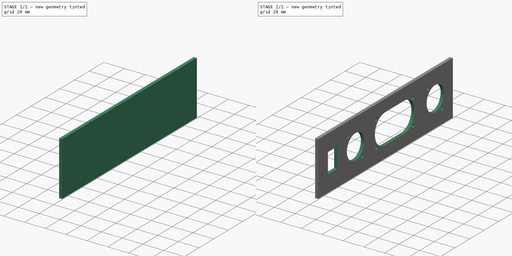
[diagram: build sequence overview — one tinted view per stage of 2, left to right]
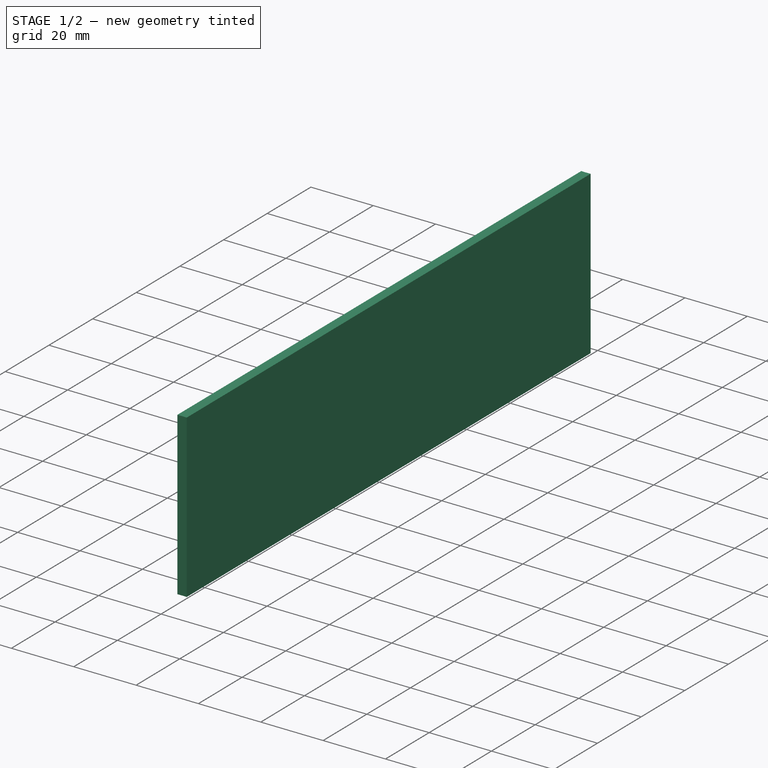
[diagram: stage 1 of 2 — iso view after this stage's code; geometry added in this stage tinted green]
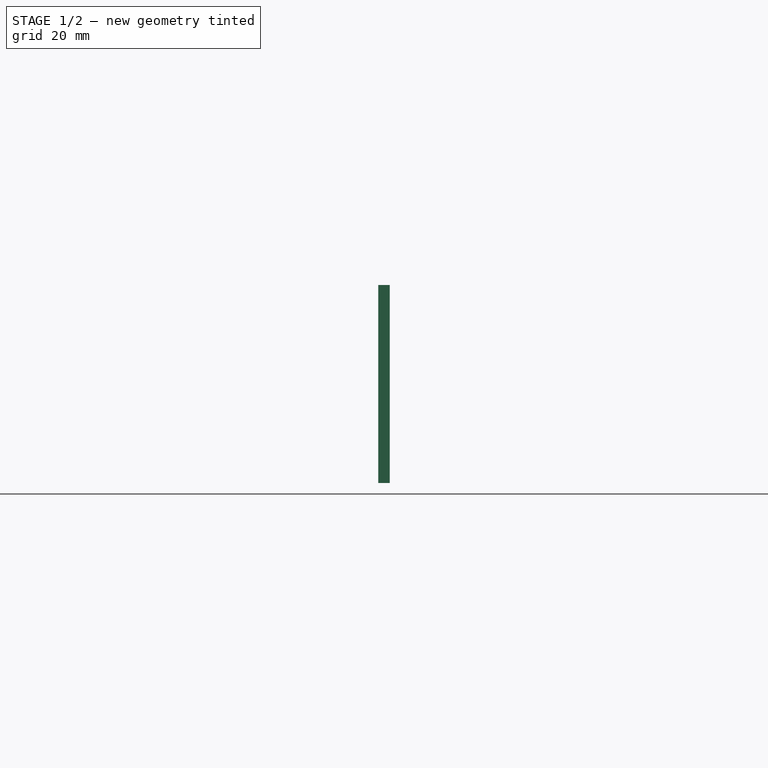
[diagram: stage 1 of 2 — front view after this stage's code; geometry added in this stage tinted green]
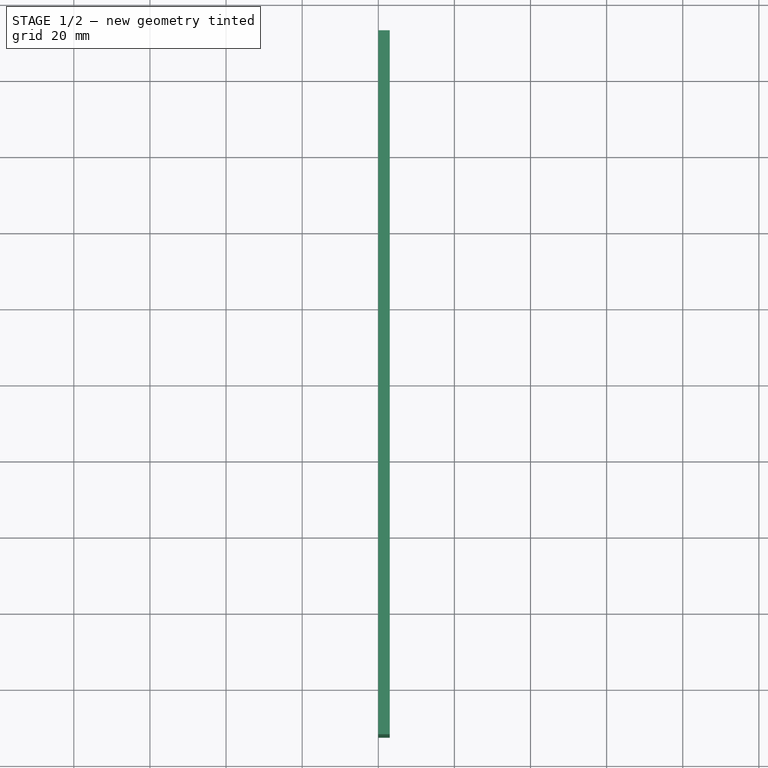
[diagram: stage 1 of 2 — top view after this stage's code; geometry added in this stage tinted green]
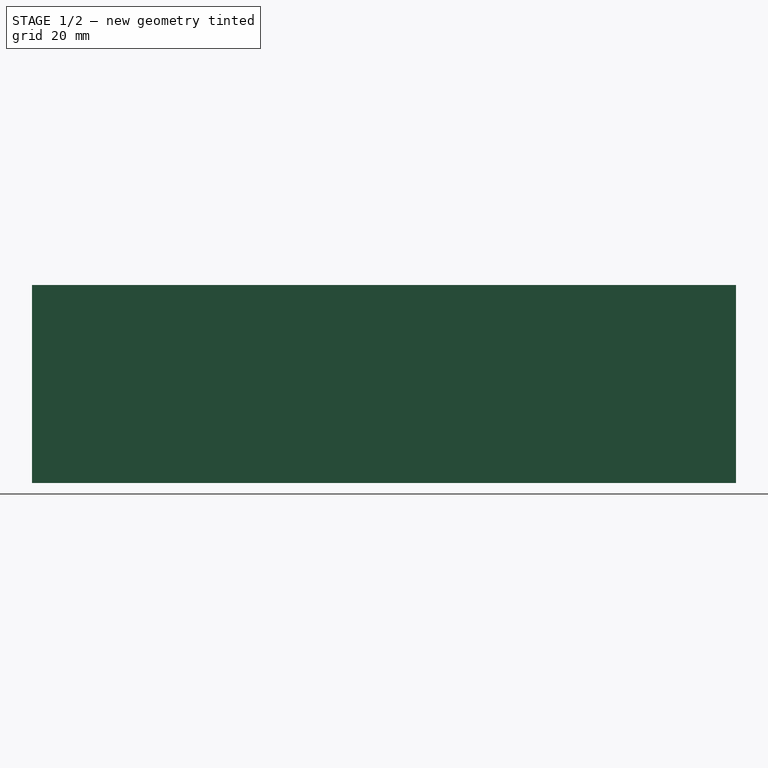
[diagram: stage 1 of 2 — right view after this stage's code; geometry added in this stage tinted green]
FCSTD DOCUMENT  (FreeCAD 0.20R29410 (Git))
Label: case-front-panel
License: All rights reserved
LicenseURL: http://en.wikipedia.org/wiki/All_rights_reserved
objects: Sketcher::SketchObject×2, PartDesign::Pad×1, PartDesign::ShapeBinder×1, PartDesign::Pocket×1, PartDesign::Body×1
note: 8 computed .brp shape members not serialized (recipe doc carries the construction recipe); baked Part::Feature solids carry a one-line shape summary decoded from their .brp

FEATURE [Sketcher::SketchObject] Sketch001  label="skHoles"
  FullyConstrained = false
  MapMode = 5
  Placement = pos=(0,0,0) rot=(0.57735,0.57735,0.57735;2.0944rad)
  Support = -> [YZ_Plane]
  sketch-geometry (20):
    g0: Circle CenterX=68.2497 CenterY=23 CenterZ=0 NormalX=0 NormalY=0 NormalZ=1 AngleXU=0 Radius=11.8
    g1: Circle CenterX=58.7497 CenterY=35 CenterZ=0 NormalX=0 NormalY=0 NormalZ=1 AngleXU=0 Radius=1.55
    g2: Circle CenterX=77.7497 CenterY=11 CenterZ=0 NormalX=0 NormalY=0 NormalZ=1 AngleXU=0 Radius=1.55
    g3: ArcOfCircle CenterX=25.3964 CenterY=23 CenterZ=0 NormalX=0 NormalY=0 NormalZ=1 AngleXU=0 Radius=14.35 StartAngle=4.71239 EndAngle=7.85398
    g4: ArcOfCircle CenterX=-0.303581 CenterY=23 CenterZ=0 NormalX=0 NormalY=0 NormalZ=1 AngleXU=0 Radius=14.35 StartAngle=1.5708 EndAngle=4.71239
    g5: Circle CenterX=-41.3752 CenterY=23 CenterZ=0 NormalX=0 NormalY=0 NormalZ=1 AngleXU=0 Radius=11.8
    g6: Circle CenterX=-31.8752 CenterY=11 CenterZ=0 NormalX=0 NormalY=0 NormalZ=1 AngleXU=0 Radius=1.55
    g7: Circle CenterX=-50.8752 CenterY=35 CenterZ=0 NormalX=0 NormalY=0 NormalZ=1 AngleXU=0 Radius=1.55
    g8: LineSegment StartX=-79.2293 StartY=32.7 StartZ=0 EndX=-66.3293 EndY=32.7 EndZ=0
    g9: LineSegment StartX=-66.3293 StartY=32.7 StartZ=0 EndX=-66.3293 EndY=13.3 EndZ=0
    g10: LineSegment StartX=-66.3293 StartY=13.3 StartZ=0 EndX=-79.2293 EndY=13.3 EndZ=0
    g11: LineSegment StartX=-79.2293 StartY=13.3 StartZ=0 EndX=-79.2293 EndY=32.7 EndZ=0
    g12: LineSegment StartX=-0.303581 StartY=37.35 StartZ=0 EndX=25.3964 EndY=37.35 EndZ=0
    g13: LineSegment StartX=-0.303581 StartY=8.65 StartZ=0 EndX=25.3964 EndY=8.65 EndZ=0
    g14: LineSegment StartX=92.5 StartY=23 StartZ=0 EndX=-92.5 EndY=23 EndZ=0
    g15: Circle CenterX=-12.4536 CenterY=35.2 CenterZ=0 NormalX=0 NormalY=0 NormalZ=1 AngleXU=0 Radius=1.6
    g16: Circle CenterX=-12.4536 CenterY=10.8 CenterZ=0 NormalX=0 NormalY=0 NormalZ=1 AngleXU=0 Radius=1.6
    g17: Circle CenterX=37.5464 CenterY=10.8 CenterZ=0 NormalX=0 NormalY=0 NormalZ=1 AngleXU=0 Radius=1.6
    g18: Circle CenterX=37.5464 CenterY=35.2 CenterZ=0 NormalX=0 NormalY=0 NormalZ=1 AngleXU=0 Radius=1.6
    g19: GeomPoint X=12.5464 Y=23 Z=0
  constraints (48):
    c: Coincident(g8,g9)
    c: Coincident(g9,g10)
    c: Coincident(g10,g11)
    c: Coincident(g11,g8)
    c: Horizontal(g8)
    c: Horizontal(g10)
    c: Vertical(g11)
    c: PointOnObject(g3,g14)
    c: PointOnObject(g4,g14)
    c: PointOnObject(g5,g14)
    c: Symmetric(g8,g9,g14)
    c: PointOnObject(g0,g14)
    c: Symmetric(g1,g2,g0)
    c: Symmetric(g7,g6,g5)
    c: Tangent(g12,g4) = 1.5708
    c: Tangent(g13,g4) = -1.5708
    c: Tangent(g13,g3) = -1.5708
    c: Tangent(g12,g3) = 1.5708
    c: Equal(g3,g4)
    c: Diameter(g4) = 28.7
    c: Distance(g3,g4) = 25.7
    c: Equal(g15,g16)
    c: Equal(g15,g17)
    c: Equal(g15,g18)
    c: Diameter(g15) = 3.2
    c: Distance(g17,g18) = 24.4
    c: Horizontal(g15,g18)
    c: Horizontal(g17,g16)
    c: Vertical(g15,g16)
    c: Distance(g16,g17) = 50
    c: Symmetric(g15,g17,g19)
    c: Vertical(g17,g18)
    c: Symmetric(g3,g4,g19)
    c: DistanceY(g-1,g14) = 23
    c: DistanceX(g7,g6) = 19
    c: DistanceY(g6,g7) = 24
    c: Equal(g6,g7)
    c: Diameter(g6) = 3.1
    c: Diameter(g5) = 23.6
    c: Equal(g5,g0)
    c: Equal(g1,g2)
    c: Equal(g2,g6)
    c: DistanceY(g2,g1) = 24
    c: DistanceX(g1,g2) = 19
    c: Distance(g14) = 185
    c: Symmetric(g14,g14,g-2)
    c: Distance(g8) = 12.9
    c: Distance(g9) = 19.4
FEATURE [Sketcher::SketchObject] Sketch  label="skBase"
  ExternalGeometry = -> [Sketch001]
  FullyConstrained = true
  MapMode = 5
  Placement = pos=(0,0,0) rot=(0.57735,0.57735,0.57735;2.0944rad)
  Support = -> [YZ_Plane]
  sketch-geometry (4):
    g0: LineSegment StartX=-92.5 StartY=49 StartZ=0 EndX=92.5 EndY=49 EndZ=0
    g1: LineSegment StartX=92.5 StartY=49 StartZ=0 EndX=92.5 EndY=-3 EndZ=0
    g2: LineSegment StartX=92.5 StartY=-3 StartZ=0 EndX=-92.5 EndY=-3 EndZ=0
    g3: LineSegment StartX=-92.5 StartY=-3 StartZ=0 EndX=-92.5 EndY=49 EndZ=0
  constraints (12):
    c: Coincident(g0,g1)
    c: Coincident(g2,g3)
    c: Coincident(g3,g0)
    c: Horizontal(g2)
    c: Vertical(g1)
    c: Vertical(g3)
    c: Distance(g1) = 52
    c: Coincident(g2,g1)
    c: DistanceY(g-1,g1) = -3
    c: Symmetric(g0,g0,g-2)
    c: Distance(g0) = 185
    c: Distance(g-3,g1) = 24.2503
FEATURE [PartDesign::Pad] Pad  label="pdBase"
  Direction = (1,-2e-16,3e-16)
  Length = 3
  Length2 = 10
  Placement = pos=(0,0,0) rot=(0.57735,0.57735,0.57735;2.0944rad)
  Profile = -> Sketch
  ReferenceAxis = -> Sketch [N_Axis]
  Type = 0
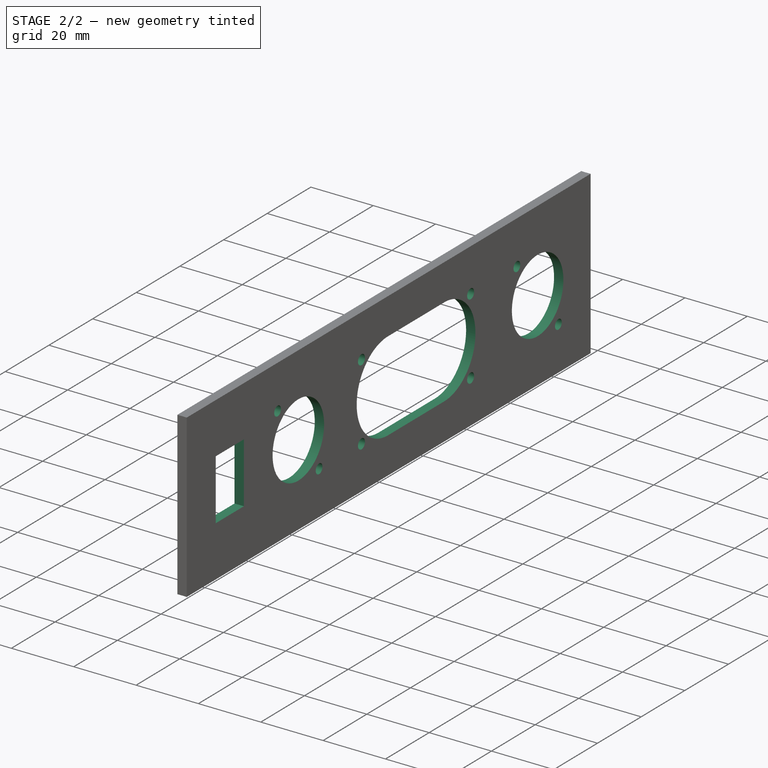
[diagram: stage 2 of 2 — iso view after this stage's code; geometry added in this stage tinted green]
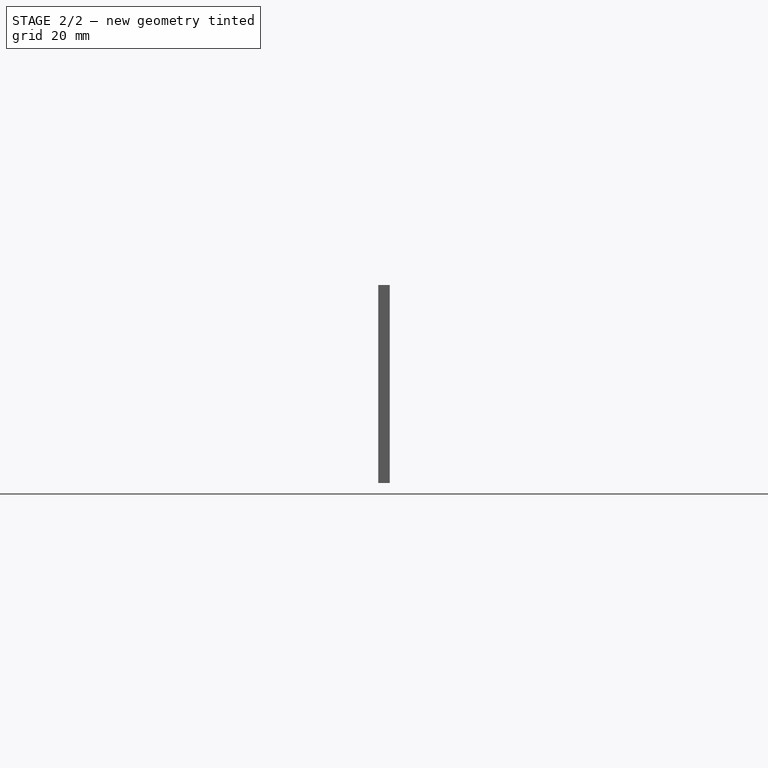
[diagram: stage 2 of 2 — front view after this stage's code; geometry added in this stage tinted green]
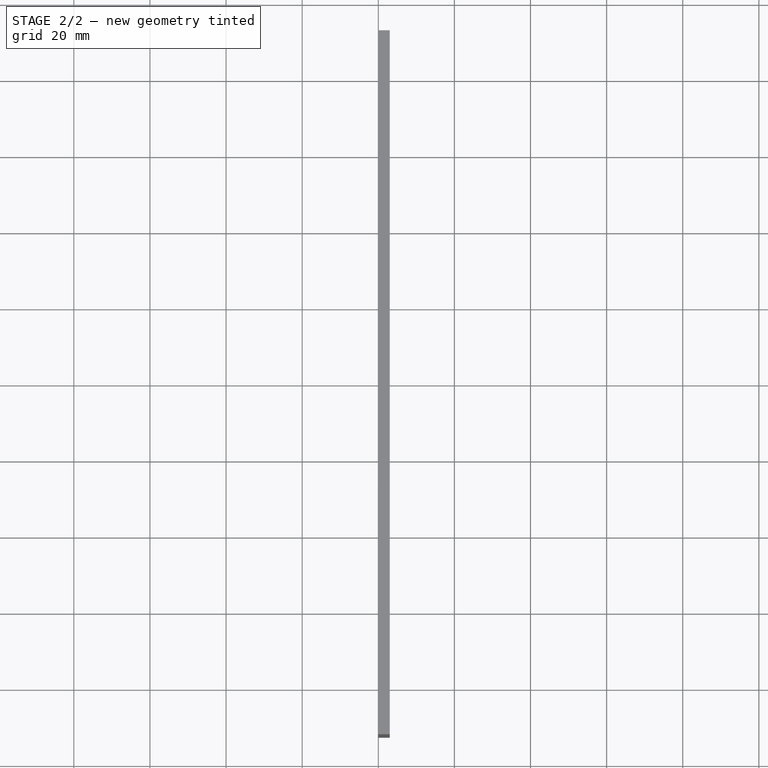
[diagram: stage 2 of 2 — top view after this stage's code; geometry added in this stage tinted green]
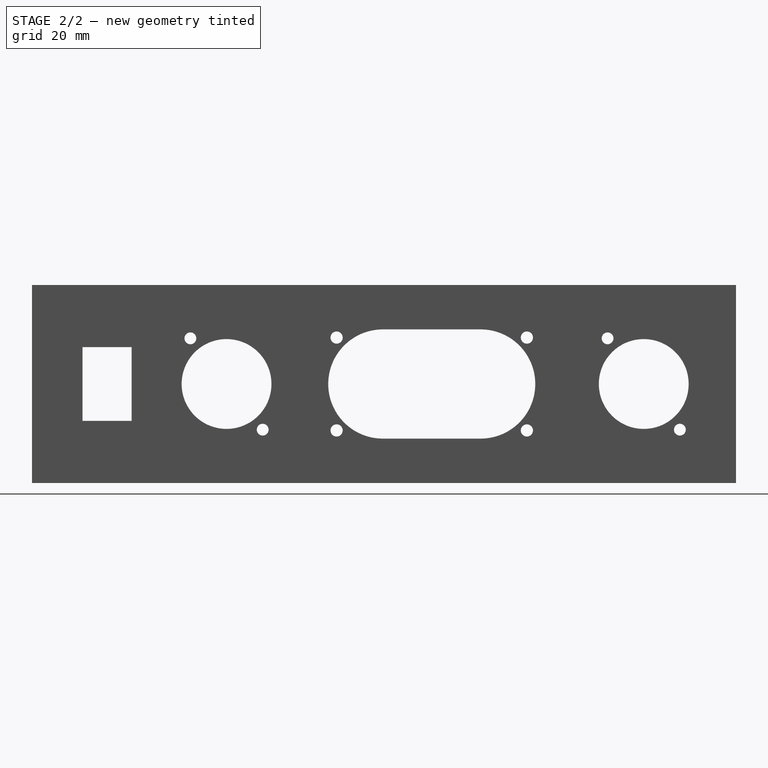
[diagram: stage 2 of 2 — right view after this stage's code; geometry added in this stage tinted green]
FEATURE [PartDesign::ShapeBinder] ShapeBinder  label="sbHoles"
  Placement = pos=(0,0,0) rot=(0.57735,0.57735,0.57735;2.0944rad)
  Support = -> [Sketch001]
  TraceSupport = false
FEATURE [PartDesign::Pocket] Pocket  label="pkHoles"
  BaseFeature = -> Pad
  Direction = (-1,0,-1e-16)
  Length = 5
  Length2 = 5
  Placement = pos=(0,0,0) rot=(0.57735,0.57735,0.57735;2.0944rad)
  Profile = -> ShapeBinder
  Reversed = true
  Type = 0
FEATURE [PartDesign::Body] Body
  Group = -> [Sketch001,Sketch,Pad,ShapeBinder,Pocket]
  Origin = -> Origin
  Tip = -> Pocket
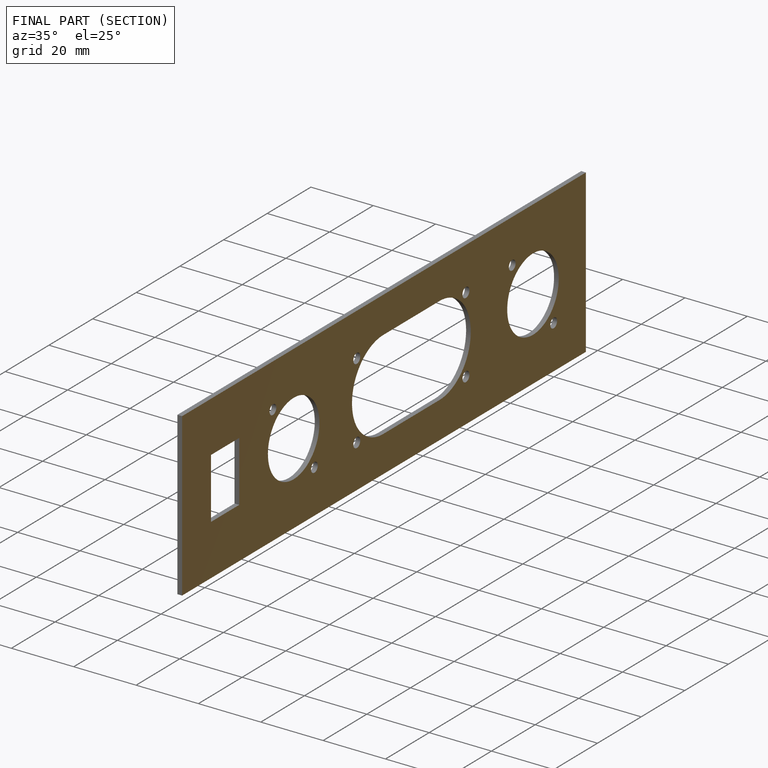
[diagram: finished part — half-section view (interior)]
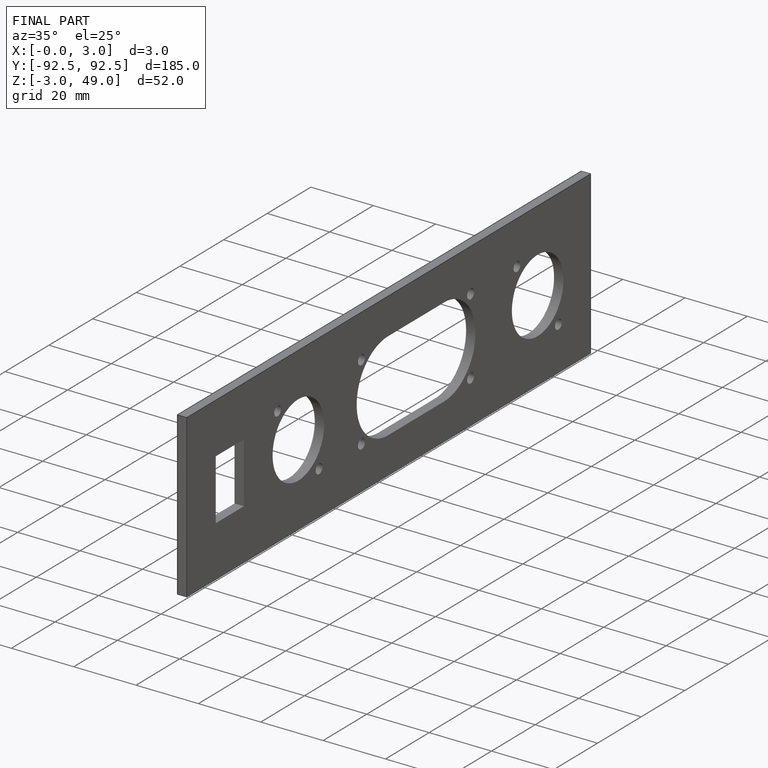
[diagram: finished part — iso view with bounding-box wireframe]
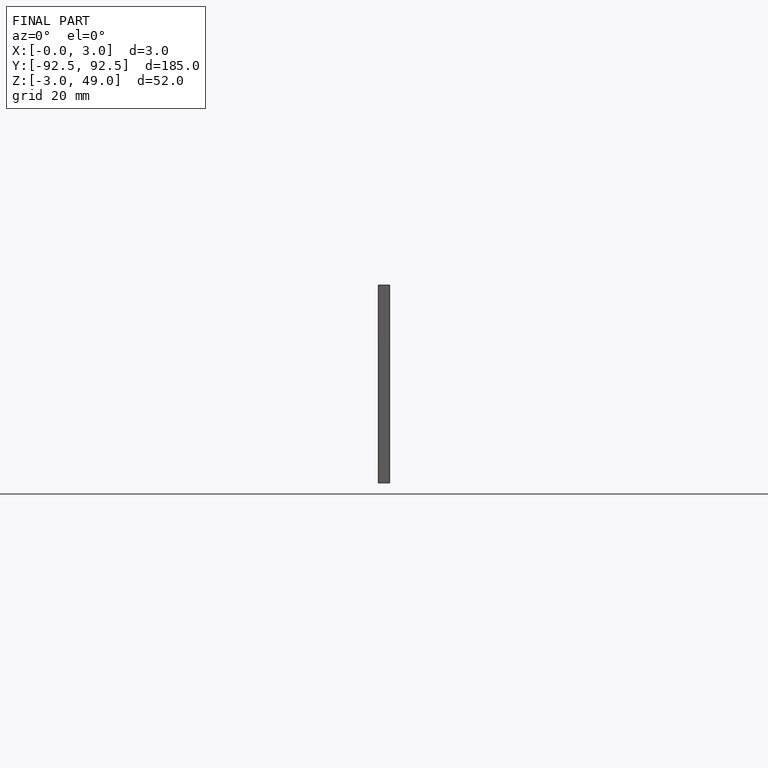
[diagram: finished part — front view with bounding-box wireframe]
